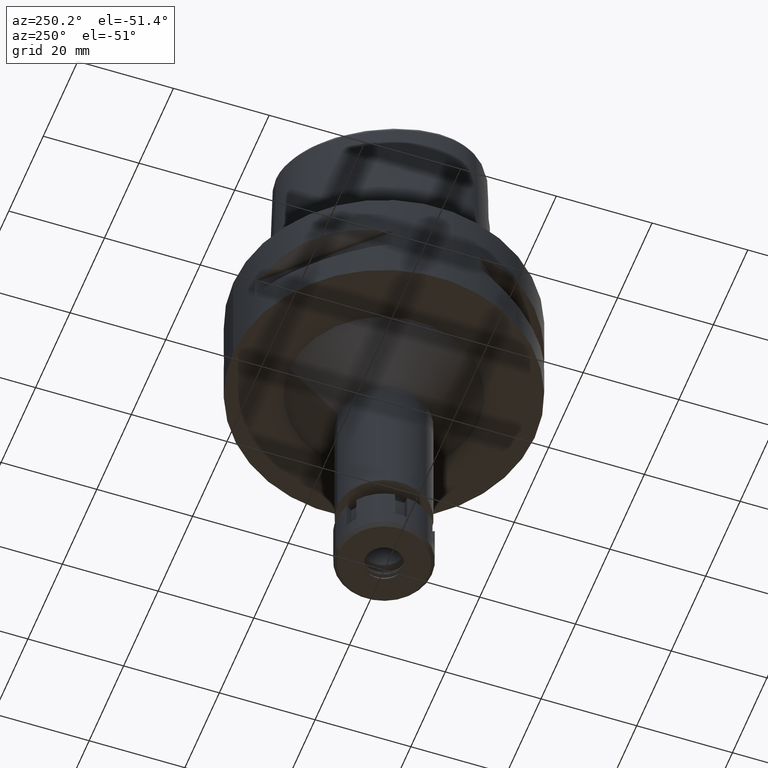
[diagram: clean part render]
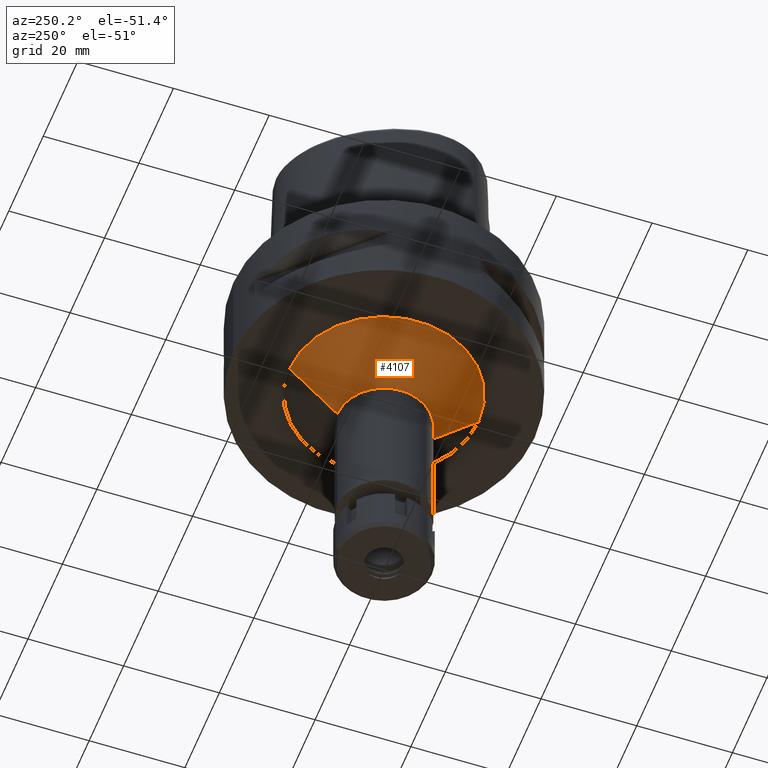
[diagram: same view with one face highlighted and labeled with its STEP entity id]
A machine part, auxiliary view. The second image highlights one B-rep face of the part: STEP entity #4107.
In plain terms, the highlighted conical surface has half-angle 45 deg.
Its self-contained STEP definition (entity closure, byte-faithful):
#15 = VECTOR ( 'NONE', #2666, 1000.000000000000114 ) ;
#164 = EDGE_CURVE ( 'NONE', #3567, #4595, #1285, .T. ) ;
#385 = CARTESIAN_POINT ( 'NONE',  ( 0.0000000000000000000, 0.0000000000000000000, -22.00000000000000000 ) ) ;
#431 = DIRECTION ( 'NONE',  ( 0.0000000000000000000, 0.0000000000000000000, -1.000000000000000000 ) ) ;
#513 = ORIENTED_EDGE ( 'NONE', *, *, #164, .T. ) ;
#583 = CARTESIAN_POINT ( 'NONE',  ( 0.0000000000000000000, 19.75000000000000000, -22.00000000000000000 ) ) ;
#621 = VERTEX_POINT ( 'NONE', #2981 ) ;
#755 = DIRECTION ( 'NONE',  ( 0.0000000000000000000, -1.000000000000000000, 0.0000000000000000000 ) ) ;
#781 = DIRECTION ( 'NONE',  ( 0.0000000000000000000, 0.0000000000000000000, -1.000000000000000000 ) ) ;
#824 = ORIENTED_EDGE ( 'NONE', *, *, #3735, .F. ) ;
#932 = CARTESIAN_POINT ( 'NONE',  ( 0.0000000000000000000, 19.75000000000000000, -22.00000000000000000 ) ) ;
#953 = ORIENTED_EDGE ( 'NONE', *, *, #2597, .T. ) ;
#1285 = CIRCLE ( 'NONE', #2354, 19.75000000000000000 ) ;
#1481 = LINE ( 'NONE', #583, #2174 ) ;
#1703 = DIRECTION ( 'NONE',  ( 0.0000000000000000000, 1.000000000000000000, 0.0000000000000000000 ) ) ;
#1762 = LINE ( 'NONE', #4763, #15 ) ;
#1782 = CIRCLE ( 'NONE', #1874, 9.750000000000000000 ) ;
#1787 = CONICAL_SURFACE ( 'NONE', #2931, 14.75000000000000000, 0.7853981633972997312 ) ;
#1874 = AXIS2_PLACEMENT_3D ( 'NONE', #4541, #431, #755 ) ;
#2174 = VECTOR ( 'NONE', #3163, 1000.000000000000114 ) ;
#2354 = AXIS2_PLACEMENT_3D ( 'NONE', #385, #781, #4952 ) ;
#2597 = EDGE_CURVE ( 'NONE', #4595, #3867, #1481, .T. ) ;
#2666 = DIRECTION ( 'NONE',  ( 0.0000000000000000000, 0.7071067811865474617, -0.7071067811865474617 ) ) ;
#2803 = EDGE_CURVE ( 'NONE', #621, #3867, #1782, .T. ) ;
#2931 = AXIS2_PLACEMENT_3D ( 'NONE', #3812, #4671, #1703 ) ;
#2981 = CARTESIAN_POINT ( 'NONE',  ( 0.0000000000000000000, -9.750000000000000000, -32.00000000000000000 ) ) ;
#3163 = DIRECTION ( 'NONE',  ( 0.0000000000000000000, -0.7071067811865474617, -0.7071067811865474617 ) ) ;
#3338 = CARTESIAN_POINT ( 'NONE',  ( 0.0000000000000000000, -19.75000000000000000, -22.00000000000000000 ) ) ;
#3355 = CARTESIAN_POINT ( 'NONE',  ( 0.0000000000000000000, 9.750000000000000000, -32.00000000000000000 ) ) ;
#3567 = VERTEX_POINT ( 'NONE', #3338 ) ;
#3637 = EDGE_LOOP ( 'NONE', ( #3992, #824, #513, #953 ) ) ;
#3735 = EDGE_CURVE ( 'NONE', #3567, #621, #1762, .T. ) ;
#3812 = CARTESIAN_POINT ( 'NONE',  ( 0.0000000000000000000, 0.0000000000000000000, -27.00000000000000000 ) ) ;
#3867 = VERTEX_POINT ( 'NONE', #3355 ) ;
#3992 = ORIENTED_EDGE ( 'NONE', *, *, #2803, .F. ) ;
#4107 = ADVANCED_FACE ( 'NONE', ( #5174 ), #1787, .T. ) ;
#4541 = CARTESIAN_POINT ( 'NONE',  ( 0.0000000000000000000, 0.0000000000000000000, -32.00000000000000000 ) ) ;
#4595 = VERTEX_POINT ( 'NONE', #932 ) ;
#4671 = DIRECTION ( 'NONE',  ( 0.0000000000000000000, 0.0000000000000000000, 1.000000000000000000 ) ) ;
#4763 = CARTESIAN_POINT ( 'NONE',  ( 0.0000000000000000000, -19.75000000000000000, -22.00000000000000000 ) ) ;
#4952 = DIRECTION ( 'NONE',  ( 0.0000000000000000000, -1.000000000000000000, 0.0000000000000000000 ) ) ;
#5174 = FACE_OUTER_BOUND ( 'NONE', #3637, .T. ) ;